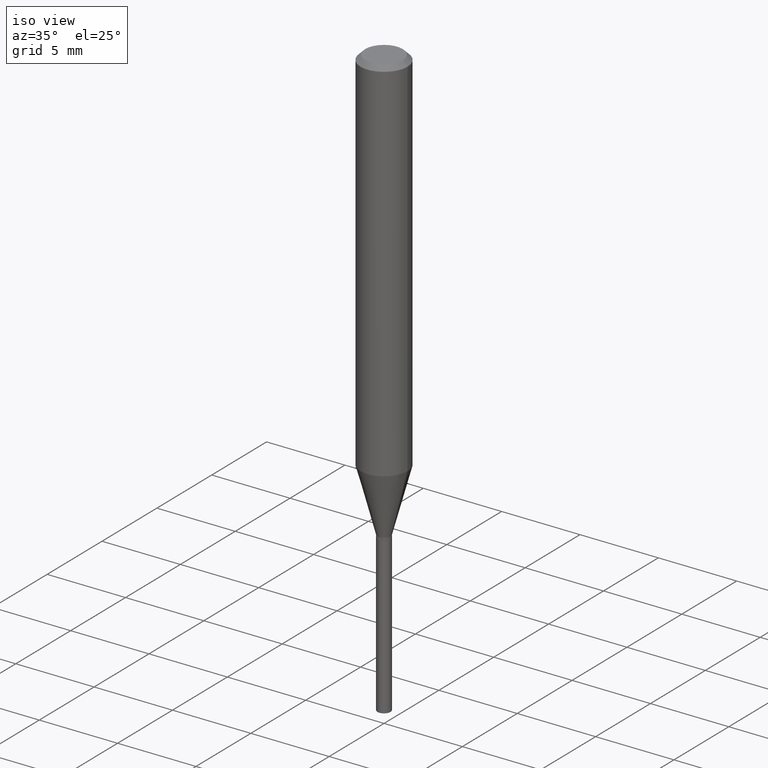
[diagram: clean part render]
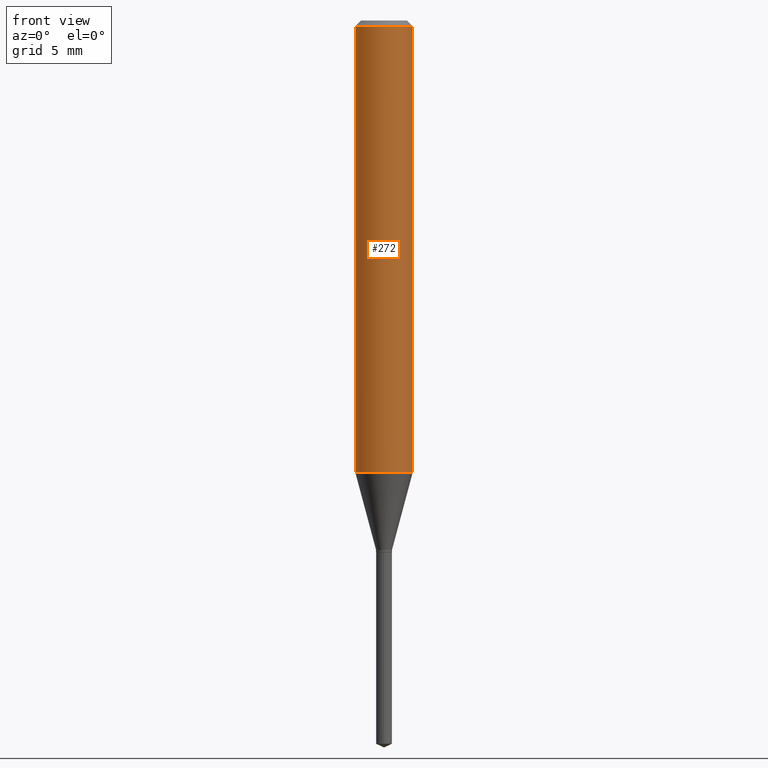
[diagram: tour spotlight — one face highlighted and labeled with its STEP entity id]
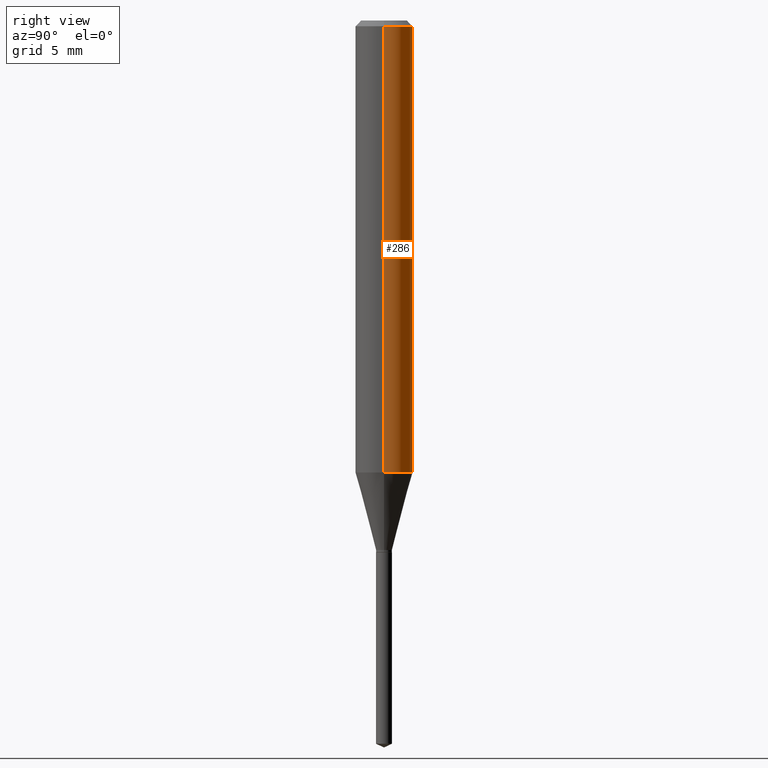
[diagram: tour spotlight — one face highlighted and labeled with its STEP entity id]
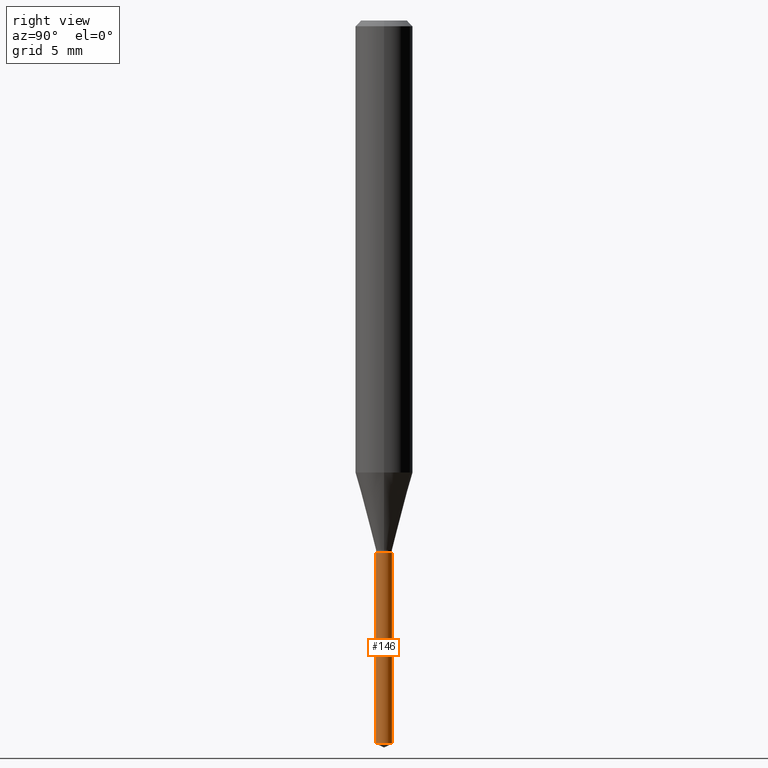
[diagram: tour spotlight — one face highlighted and labeled with its STEP entity id]
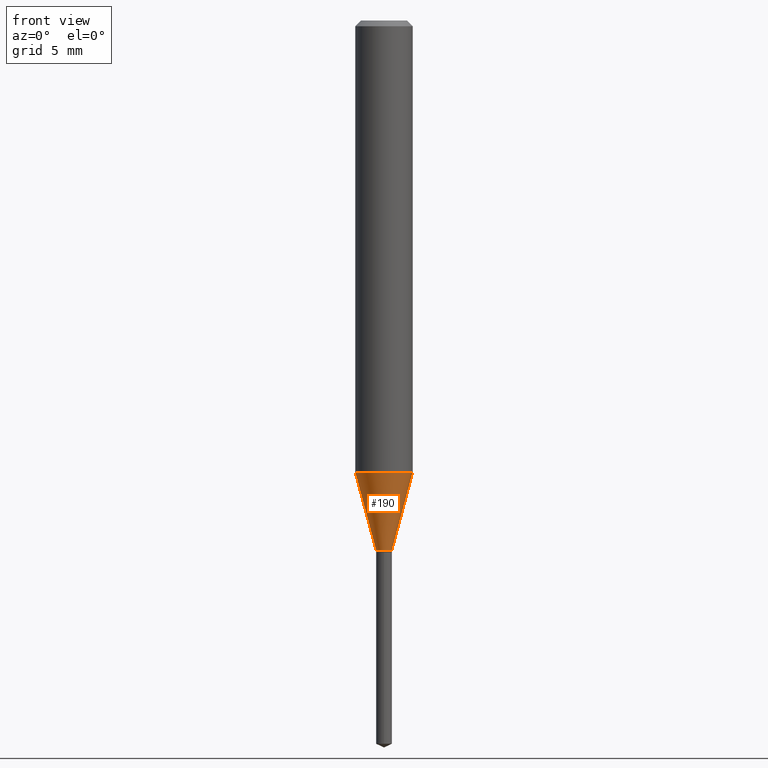
[diagram: tour spotlight — one face highlighted and labeled with its STEP entity id]
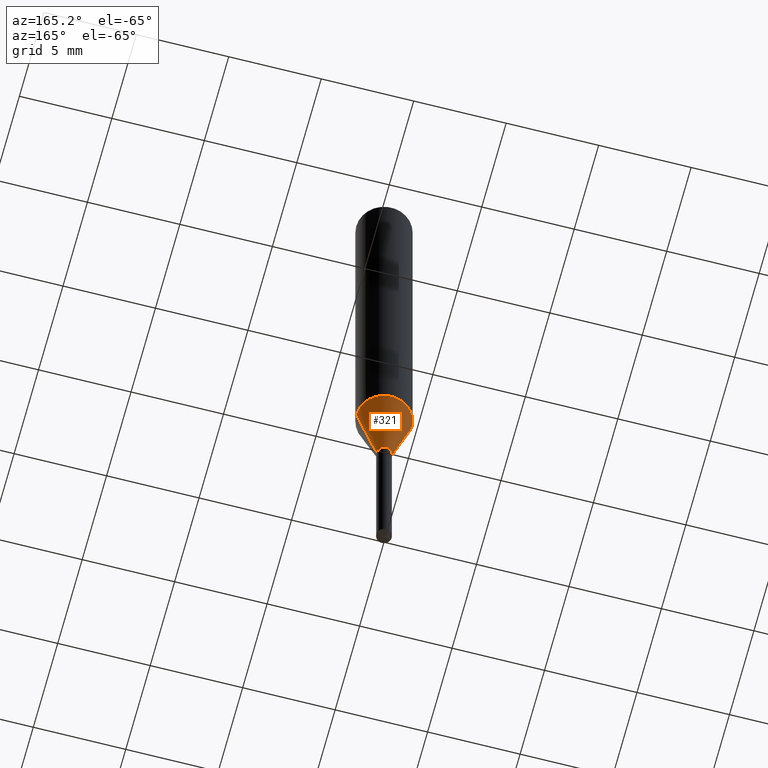
[diagram: tour spotlight — one face highlighted and labeled with its STEP entity id]
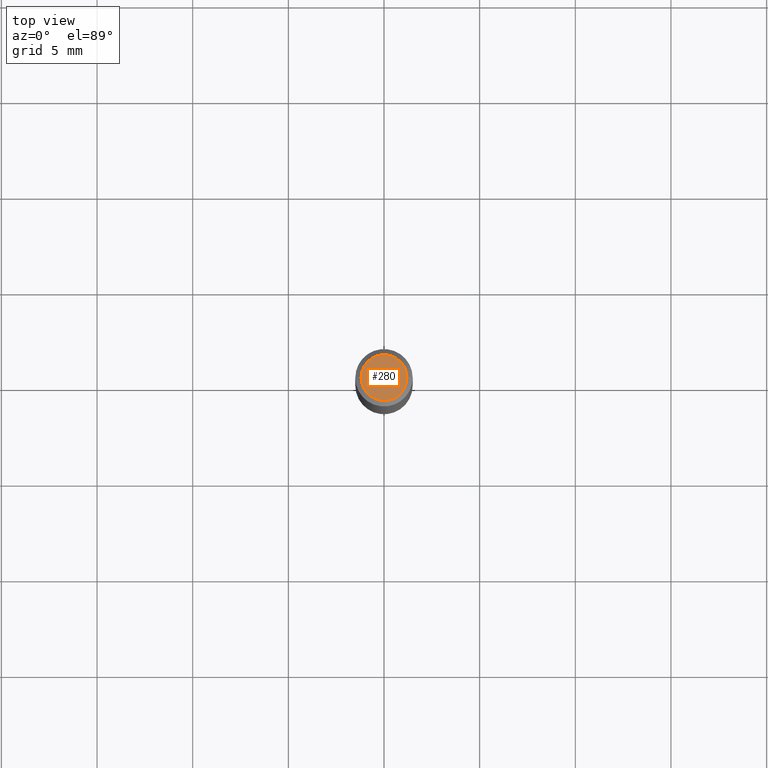
[diagram: tour spotlight — one face highlighted and labeled with its STEP entity id]
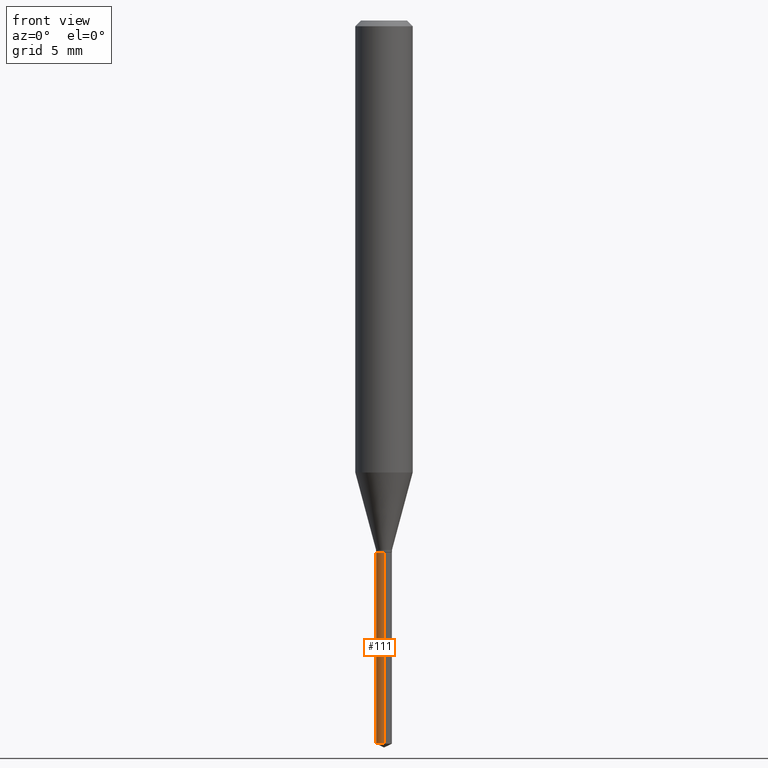
[diagram: tour spotlight — one face highlighted and labeled with its STEP entity id]
A machine part: a face-by-face anatomy tour. The part has 17 B-rep faces; the first image is the clean iso view, then the 7 largest visible faces are spotlighted one at a time (largest first), each with its STEP entity span.

Face 1 — front view, entity #272. In plain terms, the highlighted cylindrical surface (edge-blend (fillet) strip) has radius 1.4999 mm, axis along (-0, 0, 1).
Definition (entity closure, byte-faithful):
#3 = CARTESIAN_POINT ( 'NONE',  ( 0.05905000000000010935, -3.660264541385565561E-15, -0.9302414305168089648 ) ) ;
#17 = LINE ( 'NONE', #279, #449 ) ;
#23 = AXIS2_PLACEMENT_3D ( 'NONE', #137, #324, #74 ) ;
#34 = VERTEX_POINT ( 'NONE', #121 ) ;
#37 = DIRECTION ( 'NONE',  ( -2.445468806185136877E-29, 3.491481338843145188E-15, 1.000000000000000000 ) ) ;
#38 = ORIENTED_EDGE ( 'NONE', *, *, #470, .T. ) ;
#39 = CIRCLE ( 'NONE', #23, 0.05905000000000010935 ) ;
#62 = ORIENTED_EDGE ( 'NONE', *, *, #208, .F. ) ;
#73 = VERTEX_POINT ( 'NONE', #200 ) ;
#74 = DIRECTION ( 'NONE',  ( 1.000000000000000000, -6.982962677686267499E-15, 0.000000000000000000 ) ) ;
#93 = VECTOR ( 'NONE', #37, 39.37007874015748143 ) ;
#101 = DIRECTION ( 'NONE',  ( -2.445468806185136877E-29, 3.491481338843145188E-15, 1.000000000000000000 ) ) ;
#118 = EDGE_LOOP ( 'NONE', ( #325, #38, #123, #62 ) ) ;
#121 = CARTESIAN_POINT ( 'NONE',  ( 0.05904999999999999832, -4.535783407291118600E-16, -0.01181000000000006871 ) ) ;
#123 = ORIENTED_EDGE ( 'NONE', *, *, #462, .T. ) ;
#137 = CARTESIAN_POINT ( 'NONE',  ( 2.274876400549894550E-29, -3.247920595268191429E-15, -0.9302414305168089648 ) ) ;
#145 = VERTEX_POINT ( 'NONE', #3 ) ;
#200 = CARTESIAN_POINT ( 'NONE',  ( -0.05904999999999999832, -1.225002009473624692E-15, -0.01181000000000006871 ) ) ;
#201 = FACE_OUTER_BOUND ( 'NONE', #118, .T. ) ;
#208 = EDGE_CURVE ( 'NONE', #73, #34, #411, .T. ) ;
#228 = CARTESIAN_POINT ( 'NONE',  ( 0.05905000000000005383, -4.123439461173744271E-16, 2.879382386107502672E-30 ) ) ;
#231 = EDGE_CURVE ( 'NONE', #416, #73, #17, .T. ) ;
#252 = CYLINDRICAL_SURFACE ( 'NONE', #426, 0.05905000000000005383 ) ;
#272 = ADVANCED_FACE ( 'NONE', ( #201 ), #252, .T. ) ;
#279 = CARTESIAN_POINT ( 'NONE',  ( -0.05905000000000005383, 4.195754854663395423E-16, -2.904631170795524694E-30 ) ) ;
#285 = DIRECTION ( 'NONE',  ( 1.000000000000000000, -6.982962677686266711E-15, 0.000000000000000000 ) ) ;
#287 = DIRECTION ( 'NONE',  ( -2.445468806185136597E-29, 3.491481338843145583E-15, 1.000000000000000000 ) ) ;
#324 = DIRECTION ( 'NONE',  ( -2.445468806185136597E-29, 3.491481338843145583E-15, 1.000000000000000000 ) ) ;
#325 = ORIENTED_EDGE ( 'NONE', *, *, #231, .F. ) ;
#346 = AXIS2_PLACEMENT_3D ( 'NONE', #365, #287, #285 ) ;
#365 = CARTESIAN_POINT ( 'NONE',  ( 2.888098660104663328E-31, -4.123439461173779030E-17, -0.01181000000000006871 ) ) ;
#393 = DIRECTION ( 'NONE',  ( 1.000000000000000000, -6.982962677686266711E-15, 4.876176775795935793E-29 ) ) ;
#396 = DIRECTION ( 'NONE',  ( -2.445468806185136597E-29, 3.491481338843145583E-15, 1.000000000000000000 ) ) ;
#411 = CIRCLE ( 'NONE', #346, 0.05904999999999999832 ) ;
#415 = LINE ( 'NONE', #228, #93 ) ;
#416 = VERTEX_POINT ( 'NONE', #477 ) ;
#426 = AXIS2_PLACEMENT_3D ( 'NONE', #475, #396, #393 ) ;
#449 = VECTOR ( 'NONE', #101, 39.37007874015748143 ) ;
#462 = EDGE_CURVE ( 'NONE', #145, #34, #415, .T. ) ;
#470 = EDGE_CURVE ( 'NONE', #416, #145, #39, .T. ) ;
#475 = CARTESIAN_POINT ( 'NONE',  ( 0.000000000000000000, 0.000000000000000000, 0.000000000000000000 ) ) ;
#477 = CARTESIAN_POINT ( 'NONE',  ( -0.05905000000000010935, -2.828345109801851148E-15, -0.9302414305168089648 ) ) ;

Face 2 — right view, entity #286. In plain terms, the highlighted cylindrical surface (edge-blend (fillet) strip) has radius 1.4999 mm, axis along (-0, 0, 1).
Definition (entity closure, byte-faithful):
#3 = CARTESIAN_POINT ( 'NONE',  ( 0.05905000000000010935, -3.660264541385565561E-15, -0.9302414305168089648 ) ) ;
#17 = LINE ( 'NONE', #279, #449 ) ;
#18 = ORIENTED_EDGE ( 'NONE', *, *, #414, .F. ) ;
#26 = ORIENTED_EDGE ( 'NONE', *, *, #231, .T. ) ;
#30 = CARTESIAN_POINT ( 'NONE',  ( 2.888098660104663328E-31, -4.123439461173779030E-17, -0.01181000000000006871 ) ) ;
#34 = VERTEX_POINT ( 'NONE', #121 ) ;
#37 = DIRECTION ( 'NONE',  ( -2.445468806185136877E-29, 3.491481338843145188E-15, 1.000000000000000000 ) ) ;
#48 = CIRCLE ( 'NONE', #358, 0.05905000000000010935 ) ;
#63 = ORIENTED_EDGE ( 'NONE', *, *, #370, .T. ) ;
#65 = DIRECTION ( 'NONE',  ( -2.445468806185136597E-29, 3.491481338843145583E-15, 1.000000000000000000 ) ) ;
#73 = VERTEX_POINT ( 'NONE', #200 ) ;
#75 = ORIENTED_EDGE ( 'NONE', *, *, #462, .F. ) ;
#87 = AXIS2_PLACEMENT_3D ( 'NONE', #89, #65, #133 ) ;
#89 = CARTESIAN_POINT ( 'NONE',  ( 0.000000000000000000, 0.000000000000000000, 0.000000000000000000 ) ) ;
#93 = VECTOR ( 'NONE', #37, 39.37007874015748143 ) ;
#101 = DIRECTION ( 'NONE',  ( -2.445468806185136877E-29, 3.491481338843145188E-15, 1.000000000000000000 ) ) ;
#121 = CARTESIAN_POINT ( 'NONE',  ( 0.05904999999999999832, -4.535783407291118600E-16, -0.01181000000000006871 ) ) ;
#133 = DIRECTION ( 'NONE',  ( 1.000000000000000000, -6.982962677686266711E-15, 4.876176775795935793E-29 ) ) ;
#142 = DIRECTION ( 'NONE',  ( 1.000000000000000000, -6.982962677686267499E-15, 0.000000000000000000 ) ) ;
#145 = VERTEX_POINT ( 'NONE', #3 ) ;
#161 = EDGE_LOOP ( 'NONE', ( #63, #26, #18, #75 ) ) ;
#170 = CIRCLE ( 'NONE', #465, 0.05904999999999999832 ) ;
#184 = DIRECTION ( 'NONE',  ( -2.445468806185136597E-29, 3.491481338843145583E-15, 1.000000000000000000 ) ) ;
#200 = CARTESIAN_POINT ( 'NONE',  ( -0.05904999999999999832, -1.225002009473624692E-15, -0.01181000000000006871 ) ) ;
#225 = CARTESIAN_POINT ( 'NONE',  ( 2.274876400549894550E-29, -3.247920595268191429E-15, -0.9302414305168089648 ) ) ;
#228 = CARTESIAN_POINT ( 'NONE',  ( 0.05905000000000005383, -4.123439461173744271E-16, 2.879382386107502672E-30 ) ) ;
#231 = EDGE_CURVE ( 'NONE', #416, #73, #17, .T. ) ;
#246 = FACE_OUTER_BOUND ( 'NONE', #161, .T. ) ;
#279 = CARTESIAN_POINT ( 'NONE',  ( -0.05905000000000005383, 4.195754854663395423E-16, -2.904631170795524694E-30 ) ) ;
#286 = ADVANCED_FACE ( 'NONE', ( #246 ), #403, .T. ) ;
#289 = DIRECTION ( 'NONE',  ( -2.445468806185136597E-29, 3.491481338843145583E-15, 1.000000000000000000 ) ) ;
#358 = AXIS2_PLACEMENT_3D ( 'NONE', #225, #184, #142 ) ;
#370 = EDGE_CURVE ( 'NONE', #145, #416, #48, .T. ) ;
#403 = CYLINDRICAL_SURFACE ( 'NONE', #87, 0.05905000000000005383 ) ;
#414 = EDGE_CURVE ( 'NONE', #34, #73, #170, .T. ) ;
#415 = LINE ( 'NONE', #228, #93 ) ;
#416 = VERTEX_POINT ( 'NONE', #477 ) ;
#448 = DIRECTION ( 'NONE',  ( 1.000000000000000000, -6.982962677686266711E-15, 0.000000000000000000 ) ) ;
#449 = VECTOR ( 'NONE', #101, 39.37007874015748143 ) ;
#462 = EDGE_CURVE ( 'NONE', #145, #34, #415, .T. ) ;
#465 = AXIS2_PLACEMENT_3D ( 'NONE', #30, #289, #448 ) ;
#477 = CARTESIAN_POINT ( 'NONE',  ( -0.05905000000000010935, -2.828345109801851148E-15, -0.9302414305168089648 ) ) ;

Face 3 — right view, entity #146. In plain terms, the highlighted cylindrical surface (edge-blend (fillet) strip) has radius 0.4153 mm, axis along (-0, 0, 1).
Definition (entity closure, byte-faithful):
#32 = EDGE_CURVE ( 'NONE', #44, #183, #385, .T. ) ;
#35 = ORIENTED_EDGE ( 'NONE', *, *, #182, .F. ) ;
#44 = VERTEX_POINT ( 'NONE', #49 ) ;
#49 = CARTESIAN_POINT ( 'NONE',  ( 1.161737372968127416E-16, 0.01634999999999479925, -1.488475869789165795 ) ) ;
#59 = VERTEX_POINT ( 'NONE', #418 ) ;
#83 = DIRECTION ( 'NONE',  ( -6.982962677686265922E-15, -1.000000000000000000, 0.000000000000000000 ) ) ;
#92 = DIRECTION ( 'NONE',  ( -2.445460715294871217E-29, 3.491492925458510144E-15, 1.000000000000000000 ) ) ;
#119 = CYLINDRICAL_SURFACE ( 'NONE', #202, 0.01634999999999999995 ) ;
#126 = EDGE_CURVE ( 'NONE', #317, #59, #381, .T. ) ;
#139 = VECTOR ( 'NONE', #389, 39.37007874015748143 ) ;
#146 = ADVANCED_FACE ( 'NONE', ( #158 ), #119, .T. ) ;
#152 = DIRECTION ( 'NONE',  ( -2.445460715294871217E-29, 3.491492925458510144E-15, 1.000000000000000000 ) ) ;
#155 = VECTOR ( 'NONE', #152, 39.37007874015748143 ) ;
#158 = FACE_OUTER_BOUND ( 'NONE', #180, .T. ) ;
#162 = EDGE_CURVE ( 'NONE', #317, #44, #212, .T. ) ;
#166 = CARTESIAN_POINT ( 'NONE',  ( 3.640018120713164370E-29, -5.196990287534057900E-15, -1.488475869789165795 ) ) ;
#171 = CARTESIAN_POINT ( 'NONE',  ( 2.676565608369631794E-29, -3.821426325363822773E-15, -1.094499999999999806 ) ) ;
#173 = DIRECTION ( 'NONE',  ( -2.445460715294871217E-29, 3.491492925458510144E-15, 1.000000000000000000 ) ) ;
#180 = EDGE_LOOP ( 'NONE', ( #441, #284, #35, #367 ) ) ;
#182 = EDGE_CURVE ( 'NONE', #59, #183, #247, .T. ) ;
#183 = VERTEX_POINT ( 'NONE', #440 ) ;
#189 = CARTESIAN_POINT ( 'NONE',  ( 1.161737372968031274E-16, 0.01634999999999617662, -1.094499999999999806 ) ) ;
#202 = AXIS2_PLACEMENT_3D ( 'NONE', #309, #425, #83 ) ;
#211 = DIRECTION ( 'NONE',  ( -6.982962677686265922E-15, -1.000000000000000000, 0.000000000000000000 ) ) ;
#212 = CIRCLE ( 'NONE', #267, 0.01634999999999999995 ) ;
#247 = CIRCLE ( 'NONE', #282, 0.01634999999999999995 ) ;
#267 = AXIS2_PLACEMENT_3D ( 'NONE', #166, #173, #316 ) ;
#282 = AXIS2_PLACEMENT_3D ( 'NONE', #171, #92, #211 ) ;
#284 = ORIENTED_EDGE ( 'NONE', *, *, #32, .T. ) ;
#309 = CARTESIAN_POINT ( 'NONE',  ( 2.676565608369631794E-29, -3.821426325363822773E-15, -1.094499999999999806 ) ) ;
#316 = DIRECTION ( 'NONE',  ( -6.982962677686265922E-15, -1.000000000000000000, 0.000000000000000000 ) ) ;
#317 = VERTEX_POINT ( 'NONE', #359 ) ;
#359 = CARTESIAN_POINT ( 'NONE',  ( -1.141714397801340394E-16, -0.01635000000000519371, -1.488475869789165795 ) ) ;
#367 = ORIENTED_EDGE ( 'NONE', *, *, #126, .F. ) ;
#381 = LINE ( 'NONE', #454, #155 ) ;
#385 = LINE ( 'NONE', #189, #139 ) ;
#389 = DIRECTION ( 'NONE',  ( -2.445460715294871217E-29, 3.491492925458510144E-15, 1.000000000000000000 ) ) ;
#418 = CARTESIAN_POINT ( 'NONE',  ( -1.141714397801436783E-16, -0.01635000000000381981, -1.094499999999999806 ) ) ;
#425 = DIRECTION ( 'NONE',  ( -2.445460715294871217E-29, 3.491492925458510144E-15, 1.000000000000000000 ) ) ;
#440 = CARTESIAN_POINT ( 'NONE',  ( 1.161737372968127909E-16, 0.01634999999999617315, -1.094499999999999806 ) ) ;
#441 = ORIENTED_EDGE ( 'NONE', *, *, #162, .T. ) ;
#454 = CARTESIAN_POINT ( 'NONE',  ( -1.141714397801436783E-16, -0.01635000000000381981, -1.094499999999999806 ) ) ;

Face 4 — front view, entity #190. In plain terms, the highlighted conical surface has half-angle 15 deg.
Definition (entity closure, byte-faithful):
#1 = EDGE_CURVE ( 'NONE', #224, #394, #177, .T. ) ;
#3 = CARTESIAN_POINT ( 'NONE',  ( 0.05905000000000010935, -3.660264541385565561E-15, -0.9302414305168089648 ) ) ;
#10 = ORIENTED_EDGE ( 'NONE', *, *, #69, .T. ) ;
#23 = AXIS2_PLACEMENT_3D ( 'NONE', #137, #324, #74 ) ;
#29 = VECTOR ( 'NONE', #353, 39.37007874015747433 ) ;
#36 = CARTESIAN_POINT ( 'NONE',  ( -0.01634999999999999995, -3.688144329506715042E-15, -1.089600000000000124 ) ) ;
#39 = CIRCLE ( 'NONE', #23, 0.05905000000000010935 ) ;
#42 = DIRECTION ( 'NONE',  ( -2.445468806185136597E-29, 3.491481338843145583E-15, 1.000000000000000000 ) ) ;
#51 = LINE ( 'NONE', #240, #29 ) ;
#69 = EDGE_CURVE ( 'NONE', #394, #145, #51, .T. ) ;
#74 = DIRECTION ( 'NONE',  ( 1.000000000000000000, -6.982962677686267499E-15, 0.000000000000000000 ) ) ;
#81 = ORIENTED_EDGE ( 'NONE', *, *, #362, .F. ) ;
#99 = EDGE_LOOP ( 'NONE', ( #81, #471, #10, #334 ) ) ;
#106 = DIRECTION ( 'NONE',  ( -0.2588190451025213501, 5.211531920934551042E-15, 0.9659258262890682012 ) ) ;
#116 = AXIS2_PLACEMENT_3D ( 'NONE', #163, #42, #350 ) ;
#124 = CONICAL_SURFACE ( 'NONE', #486, 0.01634999999999999995, 0.2617993877991500740 ) ;
#128 = CARTESIAN_POINT ( 'NONE',  ( -0.01634999999999999995, -3.695825588452169658E-15, -1.089600000000000124 ) ) ;
#135 = CARTESIAN_POINT ( 'NONE',  ( 2.664582811219324806E-29, -3.804318066803491249E-15, -1.089600000000000124 ) ) ;
#137 = CARTESIAN_POINT ( 'NONE',  ( 2.274876400549894550E-29, -3.247920595268191429E-15, -0.9302414305168089648 ) ) ;
#145 = VERTEX_POINT ( 'NONE', #3 ) ;
#163 = CARTESIAN_POINT ( 'NONE',  ( 2.664582811219324806E-29, -3.804318066803491249E-15, -1.089600000000000124 ) ) ;
#165 = DIRECTION ( 'NONE',  ( -2.445468806185136597E-29, 3.491481338843145583E-15, 1.000000000000000000 ) ) ;
#177 = CIRCLE ( 'NONE', #116, 0.01634999999999999995 ) ;
#190 = ADVANCED_FACE ( 'NONE', ( #400 ), #124, .T. ) ;
#224 = VERTEX_POINT ( 'NONE', #128 ) ;
#240 = CARTESIAN_POINT ( 'NONE',  ( 0.01634999999999999995, -3.918489506583662316E-15, -1.089600000000000124 ) ) ;
#264 = LINE ( 'NONE', #36, #444 ) ;
#324 = DIRECTION ( 'NONE',  ( -2.445468806185136597E-29, 3.491481338843145583E-15, 1.000000000000000000 ) ) ;
#334 = ORIENTED_EDGE ( 'NONE', *, *, #470, .F. ) ;
#350 = DIRECTION ( 'NONE',  ( 1.000000000000000000, -6.982962677686270655E-15, 0.000000000000000000 ) ) ;
#353 = DIRECTION ( 'NONE',  ( 0.2588190451025213501, 1.565188264969621968E-15, 0.9659258262890682012 ) ) ;
#362 = EDGE_CURVE ( 'NONE', #224, #416, #264, .T. ) ;
#394 = VERTEX_POINT ( 'NONE', #482 ) ;
#400 = FACE_OUTER_BOUND ( 'NONE', #99, .T. ) ;
#416 = VERTEX_POINT ( 'NONE', #477 ) ;
#433 = DIRECTION ( 'NONE',  ( 1.000000000000000000, -6.982962677686270655E-15, 0.000000000000000000 ) ) ;
#444 = VECTOR ( 'NONE', #106, 39.37007874015747433 ) ;
#470 = EDGE_CURVE ( 'NONE', #416, #145, #39, .T. ) ;
#471 = ORIENTED_EDGE ( 'NONE', *, *, #1, .T. ) ;
#477 = CARTESIAN_POINT ( 'NONE',  ( -0.05905000000000010935, -2.828345109801851148E-15, -0.9302414305168089648 ) ) ;
#482 = CARTESIAN_POINT ( 'NONE',  ( 0.01634999999999999995, -3.918489506583662316E-15, -1.089600000000000124 ) ) ;
#486 = AXIS2_PLACEMENT_3D ( 'NONE', #135, #165, #433 ) ;

Face 5 — auxiliary view, entity #321. In plain terms, the highlighted conical surface has half-angle 15 deg.
Definition (entity closure, byte-faithful):
#3 = CARTESIAN_POINT ( 'NONE',  ( 0.05905000000000010935, -3.660264541385565561E-15, -0.9302414305168089648 ) ) ;
#19 = ORIENTED_EDGE ( 'NONE', *, *, #370, .F. ) ;
#21 = DIRECTION ( 'NONE',  ( 1.000000000000000000, -6.982962677686270655E-15, 0.000000000000000000 ) ) ;
#29 = VECTOR ( 'NONE', #353, 39.37007874015747433 ) ;
#36 = CARTESIAN_POINT ( 'NONE',  ( -0.01634999999999999995, -3.688144329506715042E-15, -1.089600000000000124 ) ) ;
#48 = CIRCLE ( 'NONE', #358, 0.05905000000000010935 ) ;
#51 = LINE ( 'NONE', #240, #29 ) ;
#53 = CIRCLE ( 'NONE', #395, 0.01634999999999999995 ) ;
#57 = ORIENTED_EDGE ( 'NONE', *, *, #175, .T. ) ;
#58 = CARTESIAN_POINT ( 'NONE',  ( 2.664582811219324806E-29, -3.804318066803491249E-15, -1.089600000000000124 ) ) ;
#69 = EDGE_CURVE ( 'NONE', #394, #145, #51, .T. ) ;
#78 = AXIS2_PLACEMENT_3D ( 'NONE', #58, #209, #98 ) ;
#98 = DIRECTION ( 'NONE',  ( 1.000000000000000000, -6.982962677686270655E-15, 0.000000000000000000 ) ) ;
#106 = DIRECTION ( 'NONE',  ( -0.2588190451025213501, 5.211531920934551042E-15, 0.9659258262890682012 ) ) ;
#128 = CARTESIAN_POINT ( 'NONE',  ( -0.01634999999999999995, -3.695825588452169658E-15, -1.089600000000000124 ) ) ;
#142 = DIRECTION ( 'NONE',  ( 1.000000000000000000, -6.982962677686267499E-15, 0.000000000000000000 ) ) ;
#145 = VERTEX_POINT ( 'NONE', #3 ) ;
#174 = ORIENTED_EDGE ( 'NONE', *, *, #362, .T. ) ;
#175 = EDGE_CURVE ( 'NONE', #394, #224, #53, .T. ) ;
#184 = DIRECTION ( 'NONE',  ( -2.445468806185136597E-29, 3.491481338843145583E-15, 1.000000000000000000 ) ) ;
#209 = DIRECTION ( 'NONE',  ( -2.445468806185136597E-29, 3.491481338843145583E-15, 1.000000000000000000 ) ) ;
#224 = VERTEX_POINT ( 'NONE', #128 ) ;
#225 = CARTESIAN_POINT ( 'NONE',  ( 2.274876400549894550E-29, -3.247920595268191429E-15, -0.9302414305168089648 ) ) ;
#240 = CARTESIAN_POINT ( 'NONE',  ( 0.01634999999999999995, -3.918489506583662316E-15, -1.089600000000000124 ) ) ;
#249 = FACE_OUTER_BOUND ( 'NONE', #253, .T. ) ;
#253 = EDGE_LOOP ( 'NONE', ( #57, #174, #19, #312 ) ) ;
#262 = CONICAL_SURFACE ( 'NONE', #78, 0.01634999999999999995, 0.2617993877991500740 ) ;
#264 = LINE ( 'NONE', #36, #444 ) ;
#312 = ORIENTED_EDGE ( 'NONE', *, *, #69, .F. ) ;
#321 = ADVANCED_FACE ( 'NONE', ( #249 ), #262, .T. ) ;
#353 = DIRECTION ( 'NONE',  ( 0.2588190451025213501, 1.565188264969621968E-15, 0.9659258262890682012 ) ) ;
#358 = AXIS2_PLACEMENT_3D ( 'NONE', #225, #184, #142 ) ;
#362 = EDGE_CURVE ( 'NONE', #224, #416, #264, .T. ) ;
#370 = EDGE_CURVE ( 'NONE', #145, #416, #48, .T. ) ;
#394 = VERTEX_POINT ( 'NONE', #482 ) ;
#395 = AXIS2_PLACEMENT_3D ( 'NONE', #467, #466, #21 ) ;
#416 = VERTEX_POINT ( 'NONE', #477 ) ;
#444 = VECTOR ( 'NONE', #106, 39.37007874015747433 ) ;
#466 = DIRECTION ( 'NONE',  ( -2.445468806185136597E-29, 3.491481338843145583E-15, 1.000000000000000000 ) ) ;
#467 = CARTESIAN_POINT ( 'NONE',  ( 2.664582811219324806E-29, -3.804318066803491249E-15, -1.089600000000000124 ) ) ;
#477 = CARTESIAN_POINT ( 'NONE',  ( -0.05905000000000010935, -2.828345109801851148E-15, -0.9302414305168089648 ) ) ;
#482 = CARTESIAN_POINT ( 'NONE',  ( 0.01634999999999999995, -3.918489506583662316E-15, -1.089600000000000124 ) ) ;

Face 6 — top view, entity #280. In plain terms, the highlighted planar face has unit normal (0, -0, -1).
Definition (entity closure, byte-faithful):
#12 = CIRCLE ( 'NONE', #214, 0.04724000000000000421 ) ;
#31 = CIRCLE ( 'NONE', #220, 0.04724000000000000421 ) ;
#33 = CARTESIAN_POINT ( 'NONE',  ( 8.265746106709734507E-48, -1.180129479067563789E-33, -3.380025165646692144E-19 ) ) ;
#56 = DIRECTION ( 'NONE',  ( 2.438088387897960049E-29, -3.491481338843145188E-15, -1.000000000000000000 ) ) ;
#61 = FACE_OUTER_BOUND ( 'NONE', #185, .T. ) ;
#94 = PLANE ( 'NONE',  #148 ) ;
#136 = ORIENTED_EDGE ( 'NONE', *, *, #453, .T. ) ;
#148 = AXIS2_PLACEMENT_3D ( 'NONE', #401, #56, #323 ) ;
#181 = DIRECTION ( 'NONE',  ( -2.445468806185136597E-29, 3.491481338843145583E-15, 1.000000000000000000 ) ) ;
#185 = EDGE_LOOP ( 'NONE', ( #322, #136 ) ) ;
#205 = VERTEX_POINT ( 'NONE', #255 ) ;
#206 = DIRECTION ( 'NONE',  ( -2.445468806185136597E-29, 3.491481338843145583E-15, 1.000000000000000000 ) ) ;
#214 = AXIS2_PLACEMENT_3D ( 'NONE', #430, #206, #363 ) ;
#220 = AXIS2_PLACEMENT_3D ( 'NONE', #33, #181, #484 ) ;
#255 = CARTESIAN_POINT ( 'NONE',  ( -0.04724000000000000421, 3.504923541997677355E-16, -3.380025165670481712E-19 ) ) ;
#263 = CARTESIAN_POINT ( 'NONE',  ( 0.04724000000000000421, -3.852183633974369345E-16, -3.380025165621689721E-19 ) ) ;
#280 = ADVANCED_FACE ( 'NONE', ( #61 ), #94, .F. ) ;
#308 = EDGE_CURVE ( 'NONE', #205, #460, #12, .T. ) ;
#322 = ORIENTED_EDGE ( 'NONE', *, *, #308, .T. ) ;
#323 = DIRECTION ( 'NONE',  ( -1.000000000000000000, 6.982962677686265922E-15, -4.876176775795935793E-29 ) ) ;
#363 = DIRECTION ( 'NONE',  ( 1.000000000000000000, -6.982962677686266711E-15, 4.876185090822587894E-29 ) ) ;
#401 = CARTESIAN_POINT ( 'NONE',  ( 4.132873053354867254E-48, -5.900647395337818946E-34, -1.690012582823346072E-19 ) ) ;
#430 = CARTESIAN_POINT ( 'NONE',  ( 8.265746106709734507E-48, -1.180129479067563789E-33, -3.380025165646692144E-19 ) ) ;
#453 = EDGE_CURVE ( 'NONE', #460, #205, #31, .T. ) ;
#460 = VERTEX_POINT ( 'NONE', #263 ) ;
#484 = DIRECTION ( 'NONE',  ( 1.000000000000000000, -6.982962677686266711E-15, 4.876185090822587894E-29 ) ) ;

Face 7 — front view, entity #111. In plain terms, the highlighted cylindrical surface (edge-blend (fillet) strip) has radius 0.4153 mm, axis along (-0, 0, 1).
Definition (entity closure, byte-faithful):
#22 = ORIENTED_EDGE ( 'NONE', *, *, #483, .T. ) ;
#32 = EDGE_CURVE ( 'NONE', #44, #183, #385, .T. ) ;
#43 = DIRECTION ( 'NONE',  ( -2.445460715294871217E-29, 3.491492925458510144E-15, 1.000000000000000000 ) ) ;
#44 = VERTEX_POINT ( 'NONE', #49 ) ;
#49 = CARTESIAN_POINT ( 'NONE',  ( 1.161737372968127416E-16, 0.01634999999999479925, -1.488475869789165795 ) ) ;
#59 = VERTEX_POINT ( 'NONE', #418 ) ;
#66 = DIRECTION ( 'NONE',  ( -6.982962677686265922E-15, -1.000000000000000000, 0.000000000000000000 ) ) ;
#88 = DIRECTION ( 'NONE',  ( -6.982962677686265922E-15, -1.000000000000000000, 0.000000000000000000 ) ) ;
#103 = AXIS2_PLACEMENT_3D ( 'NONE', #354, #230, #88 ) ;
#111 = ADVANCED_FACE ( 'NONE', ( #233 ), #114, .T. ) ;
#114 = CYLINDRICAL_SURFACE ( 'NONE', #103, 0.01634999999999999995 ) ;
#126 = EDGE_CURVE ( 'NONE', #317, #59, #381, .T. ) ;
#132 = CIRCLE ( 'NONE', #299, 0.01634999999999999995 ) ;
#134 = ORIENTED_EDGE ( 'NONE', *, *, #355, .F. ) ;
#139 = VECTOR ( 'NONE', #389, 39.37007874015748143 ) ;
#152 = DIRECTION ( 'NONE',  ( -2.445460715294871217E-29, 3.491492925458510144E-15, 1.000000000000000000 ) ) ;
#155 = VECTOR ( 'NONE', #152, 39.37007874015748143 ) ;
#183 = VERTEX_POINT ( 'NONE', #440 ) ;
#189 = CARTESIAN_POINT ( 'NONE',  ( 1.161737372968031274E-16, 0.01634999999999617662, -1.094499999999999806 ) ) ;
#191 = DIRECTION ( 'NONE',  ( -6.982962677686265922E-15, -1.000000000000000000, 0.000000000000000000 ) ) ;
#229 = CARTESIAN_POINT ( 'NONE',  ( 3.640018120713164370E-29, -5.196990287534057900E-15, -1.488475869789165795 ) ) ;
#230 = DIRECTION ( 'NONE',  ( -2.445460715294871217E-29, 3.491492925458510144E-15, 1.000000000000000000 ) ) ;
#233 = FACE_OUTER_BOUND ( 'NONE', #288, .T. ) ;
#288 = EDGE_LOOP ( 'NONE', ( #375, #22, #421, #134 ) ) ;
#297 = DIRECTION ( 'NONE',  ( -2.445460715294871217E-29, 3.491492925458510144E-15, 1.000000000000000000 ) ) ;
#299 = AXIS2_PLACEMENT_3D ( 'NONE', #229, #43, #191 ) ;
#317 = VERTEX_POINT ( 'NONE', #359 ) ;
#354 = CARTESIAN_POINT ( 'NONE',  ( 2.676565608369631794E-29, -3.821426325363822773E-15, -1.094499999999999806 ) ) ;
#355 = EDGE_CURVE ( 'NONE', #183, #59, #419, .T. ) ;
#359 = CARTESIAN_POINT ( 'NONE',  ( -1.141714397801340394E-16, -0.01635000000000519371, -1.488475869789165795 ) ) ;
#371 = CARTESIAN_POINT ( 'NONE',  ( 2.676565608369631794E-29, -3.821426325363822773E-15, -1.094499999999999806 ) ) ;
#375 = ORIENTED_EDGE ( 'NONE', *, *, #32, .F. ) ;
#381 = LINE ( 'NONE', #454, #155 ) ;
#385 = LINE ( 'NONE', #189, #139 ) ;
#386 = AXIS2_PLACEMENT_3D ( 'NONE', #371, #297, #66 ) ;
#389 = DIRECTION ( 'NONE',  ( -2.445460715294871217E-29, 3.491492925458510144E-15, 1.000000000000000000 ) ) ;
#418 = CARTESIAN_POINT ( 'NONE',  ( -1.141714397801436783E-16, -0.01635000000000381981, -1.094499999999999806 ) ) ;
#419 = CIRCLE ( 'NONE', #386, 0.01634999999999999995 ) ;
#421 = ORIENTED_EDGE ( 'NONE', *, *, #126, .T. ) ;
#440 = CARTESIAN_POINT ( 'NONE',  ( 1.161737372968127909E-16, 0.01634999999999617315, -1.094499999999999806 ) ) ;
#454 = CARTESIAN_POINT ( 'NONE',  ( -1.141714397801436783E-16, -0.01635000000000381981, -1.094499999999999806 ) ) ;
#483 = EDGE_CURVE ( 'NONE', #44, #317, #132, .T. ) ;